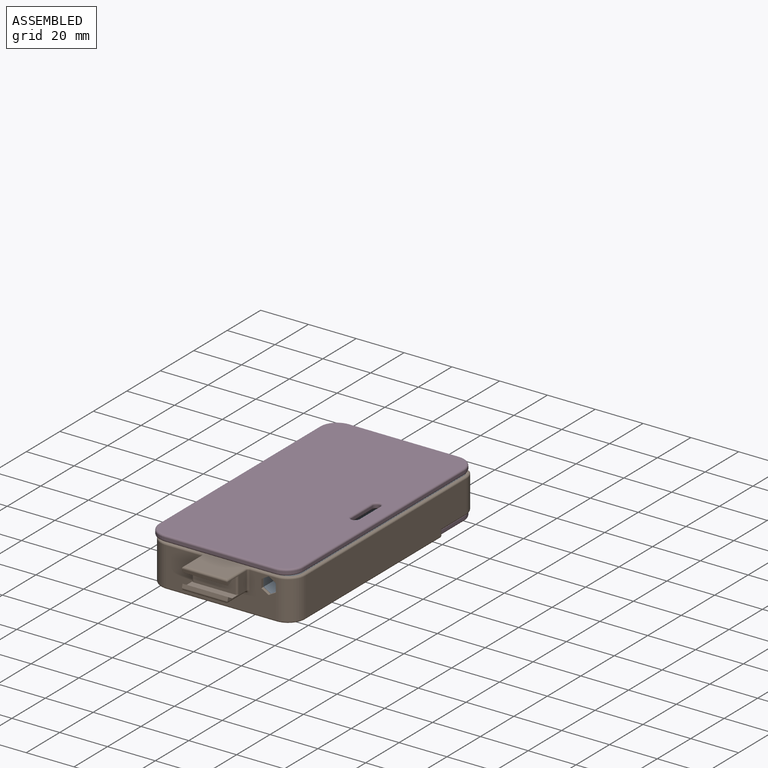
[diagram: assembled view]
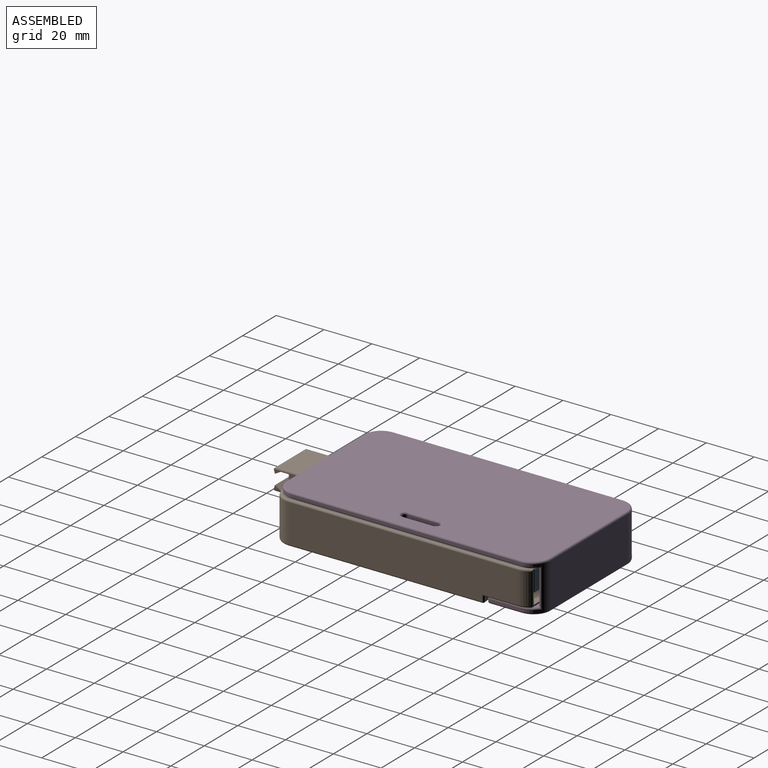
[diagram: assembled view, second angle]
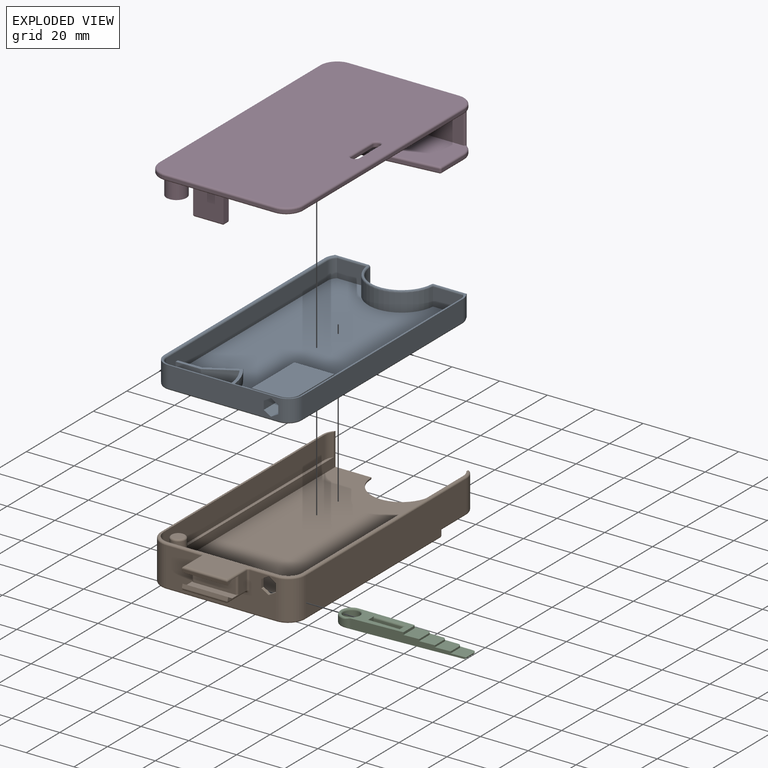
[diagram: exploded view]
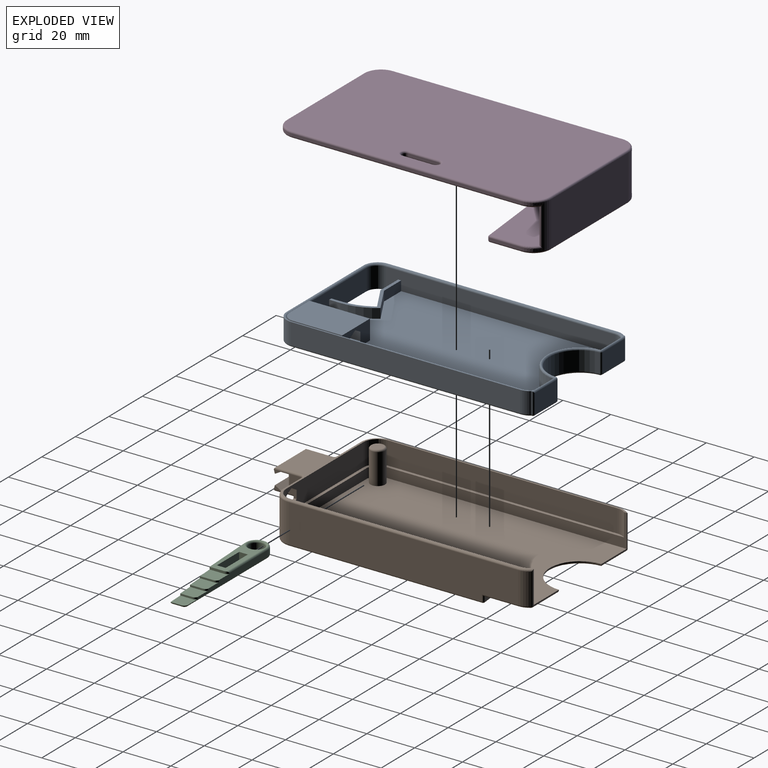
[diagram: exploded view, second angle]
ASSEMBLY  parts=4 mates=3
PART A: 87 faces, bbox 59.1x107.6x9.5 mm
  f0: plane 16.64x8.26mm, normal (0,1,0), area 105.2mm2, adj f1,f8,f76,f77,f78,f79,f80,f81
  f1: plane 75.37x7.49mm, normal (-1,0,0), area 564.8mm2, adj f0,f8,f23,f49
  f2: plane 34.1x8.76mm, normal (0,1,0), area 277mm2, adj f4,f8,f10,f14,f19,f21,f62,f86
  f3: cylinder r=0.76mm len=0.76mm, axis (1,0,0), area 0.3mm2, adj f4,f10,f72
  f4: plane 105.03x56.26mm, normal (0,0,-1), area 5305.6mm2, adj f2,f3,f9,f10,f18,f21,f36,f37
  f5: plane 105.79x57.79mm, normal (0,0,1), area 100.8mm2, adj f27,f28,f29,f30,f31,f32,f33,f34
  f6: plane 12.31x7.49mm, normal (0,-1,0), area 92.3mm2, adj f8,f20,f23,f61
  f7: plane 12.31x7.49mm, normal (0,-1,0), area 92.3mm2, adj f8,f20,f22,f68
  f8: plane 104.27x55.5mm, normal (0,0,1), area 4731.5mm2, adj f0,f1,f2,f6,f7,f9,f14,f15
  f9: plane 96.01x8.76mm, normal (1,0,0), area 720.8mm2, adj f4,f8,f17,f18,f19,f21,f22,f69
  f10: plane 5.33x4.76mm, normal (-1,0,0), area 24.1mm2, adj f2,f3,f4,f11,f19,f72
  f11: cylinder r=20.96mm len=10.48mm, axis (0,0,1), area 50.2mm2, adj f10,f12,f19,f71
  f12: plane 4.57x1.38mm, normal (-0.87,-0.5,0), area 7.3mm2, adj f11,f13,f19,f73
  f13: plane 11.55x6.67mm, normal (0.5,-0.87,0), area 61mm2, adj f12,f18,f19,f74
  f14: plane 4.76x4.06mm, normal (1,0,0), area 19.4mm2, adj f2,f8,f15,f19
  f15: cylinder r=22.23mm len=13.5mm, axis (0,0,-1), area 58.9mm2, adj f8,f14,f16,f19
  f16: plane 12.19x7.04mm, normal (-0.5,0.87,0), area 57.2mm2, adj f8,f15,f17,f19
  f17: plane 10.23x4.06mm, normal (0,1,0), area 41.6mm2, adj f8,f9,f16,f19
  f18: plane 10.57x5.33mm, normal (0,-1,0), area 56.2mm2, adj f4,f9,f13,f19,f75
  f19: plane 26.99x18.26mm, normal (0,0,1), area 53.8mm2, adj f2,f9,f10,f11,f12,f13,f14,f15
  f20: cylinder r=13.97mm len=27.82mm, axis (0,0,-1), area 309.8mm2, adj f6,f7,f8,f65
  f21: cylinder r=4.76mm len=8.76mm, axis (0,0,1), area 65.6mm2, adj f2,f4,f9,f66
  f22: cylinder r=4.76mm len=7.49mm, axis (0,0,-1), area 29.4mm2, adj f7,f8,f9,f70
  f23: cylinder r=4.76mm len=7.49mm, axis (0,0,-1), area 29.4mm2, adj f1,f6,f8,f55
  f24: plane 13.3x8mm, normal (0,1,0), area 106.4mm2, adj f51,f58,f63,f67
  f25: cylinder r=12.83mm len=25.6mm, axis (0,0,1), area 309mm2, adj f46,f53,f58,f59
  f26: plane 13.3x8mm, normal (0,1,0), area 106.4mm2, adj f43,f48,f53,f54
  f27: plane 8.76x0.21mm, normal (1,0,0), area 1.9mm2, adj f5,f28,f41,f48
  f28: cylinder r=5.91mm len=8.76mm, axis (0,0,1), area 34.6mm2, adj f5,f27,f29,f39
  f29: plane 96.01x8.76mm, normal (1,0,0), area 841.4mm2, adj f5,f28,f30,f37
  f30: cylinder r=5.91mm len=8.76mm, axis (0,0,1), area 81.3mm2, adj f5,f29,f31,f36,f78
  f31: plane 45.97x8.76mm, normal (0,-1,0), area 370.7mm2, adj f5,f30,f32,f38,f76,f77,f79,f80
  f32: cylinder r=5.91mm len=8.76mm, axis (0,0,1), area 81.3mm2, adj f5,f31,f33,f40
  f33: plane 96.01x8.76mm, normal (-1,0,0), area 841.4mm2, adj f5,f32,f34,f42
  f34: cylinder r=5.91mm len=8.76mm, axis (0,0,1), area 34.6mm2, adj f5,f33,f35,f45
  f35: plane 8.76x0.21mm, normal (-1,0,0), area 1.9mm2, adj f5,f34,f50,f63
  f36: torus R=5.14mm, axis (0,0,1), area 10.6mm2, adj f4,f30,f37,f38
  f37: cylinder r=0.76mm len=96.01mm, axis (0,1,0), area 114.9mm2, adj f4,f29,f36,f39
  f38: cylinder r=0.76mm len=45.97mm, axis (1,0,0), area 55mm2, adj f4,f31,f36,f40
  f39: torus R=5.14mm, axis (0,0,1), area 4.6mm2, adj f4,f28,f37,f41
  f40: torus R=5.14mm, axis (0,0,1), area 10.6mm2, adj f4,f32,f38,f42
  f41: cylinder r=0.76mm len=0.76mm, axis (0,1,0), area 0.4mm2, adj f4,f27,f39,f44
  f42: cylinder r=0.76mm len=96.01mm, axis (0,-1,0), area 114.9mm2, adj f4,f33,f40,f45
  f43: cylinder r=0.76mm len=13.3mm, axis (-1,0,0), area 15.9mm2, adj f4,f26,f44,f47
  f44: sphere r=0.76mm, area 0.9mm2, adj f41,f43,f48
  f45: torus R=5.14mm, axis (0,0,1), area 4.6mm2, adj f4,f34,f42,f50
  f46: torus R=13.59mm, axis (0,0,1), area 47.2mm2, adj f4,f25,f47,f52
  f47: sphere r=0.76mm, area 0.9mm2, adj f43,f46,f53
  f48: cylinder r=0.76mm len=8.76mm, axis (0,0,1), area 10.2mm2, adj f26,f27,f44,f54
  f49: cylinder r=0.76mm len=96.01mm, axis (0,1,0), area 114.9mm2, adj f1,f5,f55,f56,f85
  f50: cylinder r=0.76mm len=0.76mm, axis (0,-1,0), area 0.4mm2, adj f4,f35,f45,f57
  f51: cylinder r=0.76mm len=13.3mm, axis (-1,0,0), area 15.9mm2, adj f4,f24,f52,f57
  f52: sphere r=0.76mm, area 0.9mm2, adj f46,f51,f58
  f53: cylinder r=0.76mm len=8mm, axis (0,0,1), area 9.2mm2, adj f25,f26,f47,f60
  f54: cylinder r=0.76mm len=14.06mm, axis (-1,0,0), area 14mm2, adj f5,f26,f48,f55,f60,f61
  f55: torus R=5.52mm, axis (0,0,1), area 5mm2, adj f5,f23,f49,f54,f61
  f56: torus R=5.52mm, axis (0,0,1), area 9.5mm2, adj f5,f49,f62,f82
  f57: sphere r=0.76mm, area 0.9mm2, adj f50,f51,f63
  f58: cylinder r=0.76mm len=8mm, axis (0,0,1), area 9.2mm2, adj f24,f25,f52,f64
  f59: torus R=13.59mm, axis (0,0,1), area 39.4mm2, adj f25,f60,f64,f65
  f60: sphere r=0.76mm, area 0.8mm2, adj f53,f54,f59,f61,f65
  f61: cylinder r=0.76mm len=13.03mm, axis (-1,0,0), area 12.6mm2, adj f6,f54,f55,f60,f65
  f62: cylinder r=0.76mm len=45.97mm, axis (1,0,0), area 55mm2, adj f2,f5,f56,f66,f83
  f63: cylinder r=0.76mm len=8.76mm, axis (0,0,1), area 10.2mm2, adj f24,f35,f57,f67
  f64: sphere r=0.76mm, area 0.8mm2, adj f58,f59,f65,f67,f68
  f65: torus R=13.21mm, axis (0,0,1), area 41.3mm2, adj f20,f59,f60,f61,f64,f68
  f66: torus R=5.52mm, axis (0,0,1), area 9.5mm2, adj f5,f21,f62,f69
  f67: cylinder r=0.76mm len=14.06mm, axis (-1,0,0), area 14mm2, adj f5,f24,f63,f64,f68,f70
  f68: cylinder r=0.76mm len=13.03mm, axis (-1,0,0), area 12.6mm2, adj f7,f64,f65,f67,f70
  f69: cylinder r=0.76mm len=96.01mm, axis (0,-1,0), area 114.9mm2, adj f5,f9,f66,f70
  f70: torus R=5.52mm, axis (0,0,1), area 5mm2, adj f5,f22,f67,f68,f69
  f71: torus R=21.72mm, axis (0,0,1), area 13.3mm2, adj f4,f11,f72,f73
  f72: cylinder r=0.76mm len=2.35mm, axis (0,1,0), area 2.2mm2, adj f3,f4,f10,f71
  f73: cylinder r=0.76mm len=2.42mm, axis (-0.5,0.87,0), area 2.2mm2, adj f4,f12,f71,f74
  f74: cylinder r=0.76mm len=13.25mm, axis (-0.87,-0.5,0), area 16.6mm2, adj f4,f13,f73,f75
  f75: cylinder r=0.76mm len=1.04mm, axis (0.5,-0.87,0), area 0.1mm2, adj f4,f18,f74
  f76: plane 26.54x3.05mm, normal (0.5,0,-0.87), area 93.4mm2, adj f0,f31,f77,f81
  f77: plane 26.54x3.05mm, normal (-0.5,0,-0.87), area 93.4mm2, adj f0,f31,f76,f78
  f78: plane 26.54x3.52mm, normal (-1,0,0), area 93.4mm2, adj f0,f30,f77,f79
  f79: plane 26.54x3.05mm, normal (-0.5,0,0.87), area 93.4mm2, adj f0,f31,f78,f80
  f80: plane 26.54x3.05mm, normal (0.5,0,0.87), area 93.4mm2, adj f0,f31,f79,f81
  f81: plane 26.54x3.52mm, normal (1,0,0), area 93.4mm2, adj f0,f31,f76,f80
  f82: cylinder r=4.76mm len=4.76mm, axis (0,0,-1), area 5.7mm2, adj f56,f83,f84,f85
  f83: plane 11.87x0.76mm, normal (0,-1,0), area 9mm2, adj f62,f82,f84,f86
  f84: plane 25.4x16.64mm, normal (0,0,1), area 417.7mm2, adj f0,f82,f83,f85,f86
  f85: plane 20.64x0.76mm, normal (1,0,0), area 15.7mm2, adj f0,f49,f82,f84
  f86: plane 25.4x8.26mm, normal (-1,0,0), area 209.7mm2, adj f0,f2,f8,f83,f84
PART B: 92 faces, bbox 61.8x121.1x17.4 mm
  f0: plane 17.53x7.04mm, normal (0,-1,0), area 123.4mm2, adj f71,f76,f90,f91
  f1: plane 45.97x15.88mm, normal (0,-1,0), area 513.1mm2, adj f2,f22,f23,f35,f52,f61,f62,f63
  f2: cylinder r=0.76mm len=14.41mm, axis (1,0,0), area 17.3mm2, adj f1,f8,f49,f81
  f3: plane 15.48x13.89mm, normal (0,1,0), area 10.3mm2, adj f11,f14,f31,f53,f58,f59
  f4: plane 15.48x13.89mm, normal (0,1,0), area 10.3mm2, adj f11,f13,f31,f39,f43,f47
  f5: plane 96.01x9.53mm, normal (1,0,0), area 914.5mm2, adj f7,f8,f20,f27
  f6: plane 96.01x9.53mm, normal (-1,0,0), area 914.5mm2, adj f7,f8,f21,f26
  f7: plane 105.75x58.04mm, normal (0,0,1), area 330.2mm2, adj f5,f6,f12,f13,f14,f16,f18,f19
  f8: plane 119.24x59.06mm, normal (0,0,1), area 350.3mm2, adj f2,f5,f6,f13,f14,f16,f20,f21
  f9: plane 59.06x24.56mm, normal (0,0,-1), area 999.9mm2, adj f17,f36,f40,f47,f48,f50,f51,f53
  f10: plane 96.01x15.88mm, normal (-1,0,0), area 1465.7mm2, adj f23,f25,f33,f34,f36,f46
  f11: plane 105.54x55.5mm, normal (0,0,1), area 5564.9mm2, adj f3,f4,f12,f13,f14,f18,f19,f29
  f12: plane 45.97x4.06mm, normal (0,1,0), area 186.8mm2, adj f7,f11,f18,f19
  f13: plane 100.78x13.59mm, normal (1,0,0), area 419.6mm2, adj f4,f7,f8,f11,f18,f27,f43
  f14: plane 100.78x13.59mm, normal (-1,0,0), area 419.6mm2, adj f3,f7,f8,f11,f19,f26,f59
  f15: plane 96.01x15.88mm, normal (1,0,0), area 1482.7mm2, adj f22,f24,f42,f48,f51,f57
  f16: plane 45.97x9.53mm, normal (0,1,0), area 405.7mm2, adj f7,f8,f20,f21,f61,f62,f63,f64
  f17: plane 59.06x6.19mm, normal (-0.1,0.99,0), area 117.6mm2, adj f9,f33,f36,f41,f48
  f18: cylinder r=4.76mm len=4.76mm, axis (0,0,-1), area 30.4mm2, adj f7,f11,f12,f13
  f19: cylinder r=4.76mm len=4.76mm, axis (0,0,1), area 30.4mm2, adj f7,f11,f12,f14
  f20: cylinder r=6.03mm len=9.53mm, axis (0,0,-1), area 90.3mm2, adj f5,f7,f8,f16
  f21: cylinder r=6.03mm len=9.53mm, axis (0,0,1), area 90.3mm2, adj f6,f7,f8,f16,f65
  f22: cylinder r=7.3mm len=15.88mm, axis (0,0,1), area 182.1mm2, adj f1,f15,f38,f55,f65
  f23: cylinder r=7.3mm len=15.88mm, axis (0,0,1), area 182.1mm2, adj f1,f10,f32,f49
  f24: cylinder r=7.3mm len=13.13mm, axis (0,0,1), area 63.1mm2, adj f15,f54,f58,f59
  f25: cylinder r=7.3mm len=13.13mm, axis (0,0,1), area 63.1mm2, adj f10,f39,f40,f43
  f26: cylinder r=6.03mm len=9.53mm, axis (0,0,1), area 38mm2, adj f6,f7,f8,f14
  f27: cylinder r=6.03mm len=9.53mm, axis (0,0,1), area 38mm2, adj f5,f7,f8,f13
  f28: plane 87.42x59.06mm, normal (0,0,-1), area 4961.4mm2, adj f32,f34,f35,f38,f41,f42
  f29: cylinder r=3.05mm len=12.83mm, axis (0,0,1), area 245.7mm2, adj f11,f60
  f30: plane 4.57x4.57mm, normal (0,0,1), area 16.4mm2, adj f60
  f31: cylinder r=12.7mm len=25.4mm, axis (0,0,1), area 12.2mm2, adj f3,f4,f11,f50
  f32: torus R=6.54mm, axis (0,0,-1), area 13.2mm2, adj f23,f28,f34,f35
  f33: cylinder r=0.76mm len=2.74mm, axis (0,0,1), area 2.5mm2, adj f10,f17,f36,f37
  f34: cylinder r=0.76mm len=74.69mm, axis (0,-1,0), area 89.4mm2, adj f10,f28,f32,f37
  f35: cylinder r=0.76mm len=45.97mm, axis (1,0,0), area 55mm2, adj f1,f28,f32,f38
  f36: cylinder r=0.76mm len=21.32mm, axis (0,1,0), area 24.9mm2, adj f9,f10,f17,f33,f40
  f37: sphere r=0.76mm, area 0.9mm2, adj f33,f34,f41
  f38: torus R=6.54mm, axis (0,0,-1), area 13.2mm2, adj f22,f28,f35,f42
  f39: cylinder r=0.76mm len=13.71mm, axis (0,0,1), area 9.3mm2, adj f4,f25,f43,f44
  f40: torus R=6.54mm, axis (0,0,1), area 5.5mm2, adj f9,f25,f36,f44
  f41: cylinder r=0.76mm len=59.13mm, axis (0.99,0.1,0), area 71.1mm2, adj f17,f28,f37,f45
  f42: cylinder r=0.76mm len=80.88mm, axis (0,1,0), area 96.8mm2, adj f15,f28,f38,f45
  f43: torus R=6.54mm, axis (0,0,1), area 6.1mm2, adj f4,f8,f13,f25,f39,f46
  f44: sphere r=0.76mm, area 0.5mm2, adj f39,f40,f47
  f45: sphere r=0.76mm, area 1mm2, adj f41,f42,f48
  f46: cylinder r=0.76mm len=96.01mm, axis (0,-1,0), area 114.9mm2, adj f8,f10,f43,f49
  f47: cylinder r=0.76mm len=15.46mm, axis (1,0,0), area 18.2mm2, adj f4,f9,f44,f50
  f48: cylinder r=0.76mm len=2.74mm, axis (0,0,-1), area 2.9mm2, adj f9,f15,f17,f45,f51
  f49: torus R=6.54mm, axis (0,0,1), area 13.2mm2, adj f2,f8,f23,f46
  f50: torus R=13.46mm, axis (0,0,1), area 48.1mm2, adj f9,f31,f47,f53
  f51: cylinder r=0.76mm len=15.13mm, axis (0,1,0), area 17.5mm2, adj f9,f15,f48,f54
  f52: cylinder r=0.76mm len=10.99mm, axis (1,0,0), area 13.1mm2, adj f1,f8,f55,f89
  f53: cylinder r=0.76mm len=15.46mm, axis (1,0,0), area 18.2mm2, adj f3,f9,f50,f56
  f54: torus R=6.54mm, axis (0,0,1), area 5.5mm2, adj f9,f24,f51,f56
  f55: torus R=6.54mm, axis (0,0,1), area 13.2mm2, adj f8,f22,f52,f57
  f56: sphere r=0.76mm, area 0.5mm2, adj f53,f54,f58
  f57: cylinder r=0.76mm len=96.01mm, axis (0,1,0), area 114.9mm2, adj f8,f15,f55,f59
  f58: cylinder r=0.76mm len=13.71mm, axis (0,0,1), area 9.3mm2, adj f3,f24,f56,f59
  f59: torus R=6.54mm, axis (0,0,1), area 6.1mm2, adj f3,f8,f14,f24,f57,f58
  f60: torus R=2.29mm, axis (0,0,1), area 20.8mm2, adj f29,f30
  f61: plane 3.05x1.76mm, normal (0.5,0,-0.87), area 4.5mm2, adj f1,f16,f63,f64
  f62: plane 3.05x1.76mm, normal (0.5,0,0.87), area 4.5mm2, adj f1,f16,f63,f66
  f63: plane 3.52x1.27mm, normal (1,0,0), area 4.5mm2, adj f1,f16,f61,f62
  f64: plane 3.05x1.76mm, normal (-0.5,0,-0.87), area 4.5mm2, adj f1,f16,f61,f65
  f65: plane 3.52x1.27mm, normal (-1,0,0), area 4.5mm2, adj f21,f22,f64,f66
  f66: plane 3.05x1.76mm, normal (-0.5,0,0.87), area 4.5mm2, adj f1,f16,f62,f65
  f67: plane 11.44x7.49mm, normal (-1,0,0), area 43mm2, adj f70,f71,f72,f73,f74,f75,f76,f77
  f68: plane 17.53x10.68mm, normal (0,0,-1), area 187.1mm2, adj f77,f80,f82,f83
  f69: plane 11.44x7.49mm, normal (1,0,0), area 43mm2, adj f70,f71,f72,f73,f74,f75,f76,f80
  f70: plane 19.05x2.38mm, normal (0,0.5,0.87), area 52.3mm2, adj f67,f69,f71,f72
  f71: plane 19.05x3.81mm, normal (0,0,1), area 58.3mm2, adj f0,f67,f69,f70,f90,f91
  f72: plane 19.05x1.39mm, normal (0,-0.96,0.27), area 27.6mm2, adj f67,f69,f70,f80
  f73: plane 19.05x1.71mm, normal (0,0.5,-0.86), area 37.6mm2, adj f67,f69,f74,f76
  f74: plane 19.05x0.67mm, normal (0,0.5,-0.87), area 14.7mm2, adj f67,f69,f73,f75
  f75: plane 19.05x1.4mm, normal (0,-0.96,-0.27), area 27.6mm2, adj f67,f69,f74,f86
  f76: plane 19.05x3.81mm, normal (0,0,-1), area 58.3mm2, adj f0,f67,f69,f73,f90,f91
  f77: cylinder r=0.76mm len=11.44mm, axis (0,1,0), area 13.4mm2, adj f67,f68,f79,f80
  f78: cylinder r=0.76mm len=7.49mm, axis (0,0,1), area 9mm2, adj f1,f67,f79,f81
  f79: torus R=1.52mm, axis (0,-1,0), area 2mm2, adj f1,f77,f78,f82
  f80: cylinder r=0.76mm len=19.05mm, axis (-1,0,0), area 26.1mm2, adj f67,f68,f69,f72,f77,f83
  f81: torus R=1.52mm, axis (0,0,1), area 2mm2, adj f2,f8,f78,f84
  f82: cylinder r=0.76mm len=17.53mm, axis (-1,0,0), area 21mm2, adj f1,f68,f79,f85
  f83: cylinder r=0.76mm len=11.44mm, axis (0,-1,0), area 13.4mm2, adj f68,f69,f80,f85
  f84: cylinder r=0.76mm len=11.44mm, axis (0,-1,0), area 13.4mm2, adj f8,f67,f81,f86
  f85: torus R=1.52mm, axis (0,-1,0), area 2mm2, adj f1,f82,f83,f87
  f86: cylinder r=0.76mm len=19.05mm, axis (-1,0,0), area 26.1mm2, adj f8,f67,f69,f75,f84,f88
  f87: cylinder r=0.76mm len=7.49mm, axis (0,0,-1), area 9mm2, adj f1,f69,f85,f89
  f88: cylinder r=0.76mm len=11.44mm, axis (0,1,0), area 13.4mm2, adj f8,f69,f86,f89
  f89: torus R=1.52mm, axis (0,0,1), area 2mm2, adj f8,f52,f87,f88
  f90: cylinder r=0.76mm len=7.04mm, axis (0,0,-1), area 8.4mm2, adj f0,f69,f71,f76
  f91: cylinder r=0.76mm len=7.04mm, axis (0,0,1), area 8.4mm2, adj f0,f67,f71,f76
PART C: 39 faces, bbox 54.2x10.2x4.2 mm
  f0: plane 52.13x7.75mm, normal (0,0,-1), area 249.7mm2, adj f9,f21,f22,f23,f24,f25,f26,f31
  f1: plane 7.19x6.56mm, normal (0,0,1), area 39.7mm2, adj f5,f14,f23,f24,f25,f26,f35
  f2: plane 7.59x7.32mm, normal (0,0,1), area 47.1mm2, adj f7,f8,f11,f12,f19,f35
  f3: plane 7.32x7.25mm, normal (0,0,1), area 44.9mm2, adj f6,f7,f12,f13,f19,f35
  f4: plane 7.32x6.9mm, normal (0,0,1), area 42.7mm2, adj f5,f6,f13,f14,f19,f35
  f5: cylinder r=1.59mm len=1.46mm, axis (0,0,1), area 1.4mm2, adj f1,f4,f14,f19
  f6: cylinder r=1.59mm len=1.46mm, axis (0,0,1), area 1.4mm2, adj f3,f4,f13,f19
  f7: cylinder r=1.59mm len=1.46mm, axis (0,0,1), area 1.4mm2, adj f2,f3,f12,f19
  f8: cylinder r=1.59mm len=1.46mm, axis (0,0,1), area 1.7mm2, adj f2,f10,f11,f19,f27
  f9: cylinder r=3.3mm len=6.6mm, axis (0,0,-1), area 68.5mm2, adj f0,f29
  f10: plane 22.52x7.75mm, normal (0,0,1), area 97.5mm2, adj f8,f11,f15,f17,f27,f29,f30,f35
  f11: plane 6.13x1.02mm, normal (1,0,0), area 6.2mm2, adj f2,f8,f10,f35
  f12: plane 5.79x0.76mm, normal (1,0,0), area 4.4mm2, adj f2,f3,f7,f35
  f13: plane 5.44x0.76mm, normal (1,0,0), area 4.1mm2, adj f3,f4,f6,f35
  f14: plane 5.1x0.76mm, normal (1,0,0), area 3.9mm2, adj f1,f4,f5,f35
  f15: plane 3.94x3.3mm, normal (1,0,0), area 10.6mm2, adj f10,f16,f17,f33,f37
  f16: plane 12.7x2.54mm, normal (0,-1,0), area 32.3mm2, adj f15,f18,f31,f37
  f17: plane 13.46x3.3mm, normal (0,1,0), area 42.1mm2, adj f10,f15,f18,f34,f36
  f18: plane 3.18x2.54mm, normal (-1,0,0), area 8.1mm2, adj f16,f17,f32,f36
  f19: plane 41.83x2.54mm, normal (0,1,0), area 86.9mm2, adj f2,f3,f4,f5,f6,f7,f8,f20
  f20: cylinder r=4.64mm len=9.27mm, axis (0,0,-1), area 42.7mm2, adj f19,f21,f22,f28,f30,f38
  f21: cylinder r=0.76mm len=6.8mm, axis (1,0,0), area 2.2mm2, adj f0,f20,f22,f35,f38
  f22: torus R=3.87mm, axis (0,0,1), area 16.4mm2, adj f0,f20,f21,f24
  f23: torus R=3.08mm, axis (0,0,1), area 1mm2, adj f0,f1,f25,f35
  f24: cylinder r=0.76mm len=47.56mm, axis (-1,0,0), area 56.9mm2, adj f0,f1,f19,f22,f26
  f25: cylinder r=0.76mm len=3.97mm, axis (0,1,0), area 4.8mm2, adj f0,f1,f23,f26
  f26: torus R=0.7mm, axis (0,0,1), area 2.2mm2, adj f0,f1,f24,f25
  f27: cylinder r=0.76mm len=23.59mm, axis (1,0,0), area 27.7mm2, adj f8,f10,f19,f28,f29
  f28: torus R=3.87mm, axis (0,0,1), area 15.2mm2, adj f20,f27,f29,f30
  f29: torus R=4.06mm, axis (0,0,1), area 25.6mm2, adj f9,f10,f27,f28,f30
  f30: cylinder r=0.76mm len=6.8mm, axis (-1,0,0), area 2.1mm2, adj f10,f20,f28,f29,f35,f38
  f31: cylinder r=0.76mm len=14.22mm, axis (1,0,0), area 15.9mm2, adj f0,f16,f32,f33
  f32: cylinder r=0.76mm len=4.7mm, axis (0,-1,0), area 4.5mm2, adj f0,f18,f31,f34
  f33: cylinder r=0.76mm len=4.7mm, axis (0,1,0), area 4.5mm2, adj f0,f15,f31,f34
  f34: cylinder r=0.76mm len=14.22mm, axis (-1,0,0), area 15.9mm2, adj f0,f17,f32,f33
  f35: plane 46.47x4.19mm, normal (0.05,-1,0), area 134.2mm2, adj f0,f1,f2,f3,f4,f10,f11,f12
  f36: cylinder r=0.76mm len=3.94mm, axis (0,-1,0), area 4.1mm2, adj f10,f17,f18,f37
  f37: cylinder r=0.76mm len=13.46mm, axis (1,0,0), area 15.5mm2, adj f10,f15,f16,f36
  f38: cylinder r=2.54mm len=3.99mm, axis (0,0,-1), area 3.3mm2, adj f20,f21,f30,f35
PART D: 76 faces, bbox 61.8x111.8x19.9 mm
  f0: plane 59.06x24.89mm, normal (0,0,1), area 1260.9mm2, adj f23,f30,f34,f35,f40,f44,f46,f48
  f1: plane 13.47x1.09mm, normal (1,0,0), area 14.7mm2, adj f17,f31,f39,f44
  f2: plane 19.66x1.09mm, normal (-1,0,0), area 21.5mm2, adj f3,f27,f33,f34
  f3: cylinder r=7.3mm len=18.42mm, axis (0,0,1), area 87mm2, adj f2,f4,f14,f25,f30,f35,f38,f55
  f4: plane 96.01x1.02mm, normal (-1,0,0), area 97.5mm2, adj f3,f15,f41,f53
  f5: plane 107.78x59.06mm, normal (0,0,-1), area 6147.8mm2, adj f9,f11,f12,f13,f19,f23,f35,f38
  f6: plane 45.97x1.02mm, normal (0,-1,0), area 46.7mm2, adj f15,f16,f45,f52
  f7: plane 96.01x1.02mm, normal (1,0,0), area 97.5mm2, adj f16,f17,f49,f56
  f8: plane 109.09x59.06mm, normal (0,0,1), area 6328.7mm2, adj f51,f52,f53,f54,f55,f56,f57,f58
  f9: plane 12.83x3.18mm, normal (-1,0,0), area 40.7mm2, adj f5,f11,f12,f61
  f10: plane 11.18x1.65mm, normal (0,0,-1), area 18.5mm2, adj f60,f61,f62,f63
  f11: plane 12.83x12.7mm, normal (0,-1,0), area 162.9mm2, adj f5,f9,f13,f63
  f12: plane 12.83x12.7mm, normal (0,1,0), area 162.9mm2, adj f5,f9,f13,f60
  f13: plane 12.83x3.18mm, normal (1,0,0), area 40.7mm2, adj f5,f11,f12,f62
  f14: plane 45.97x18.42mm, normal (0,1,0), area 846.6mm2, adj f3,f17,f26,f57
  f15: cylinder r=7.3mm len=7.3mm, axis (0,0,-1), area 11.7mm2, adj f4,f6,f43,f51
  f16: cylinder r=7.3mm len=7.3mm, axis (0,0,-1), area 11.7mm2, adj f6,f7,f47,f54
  f17: cylinder r=7.3mm len=18.42mm, axis (0,0,1), area 87mm2, adj f1,f7,f14,f28,f46,f48,f50,f58
  f18: plane 59.06x26.2mm, normal (0,0,-1), area 1346.3mm2, adj f25,f26,f27,f28,f31,f32
  f19: cylinder r=4.19mm len=8.38mm, axis (0,0,-1), area 214mm2, adj f5,f22
  f20: plane 6.6x6.6mm, normal (0,0,-1), area 34.3mm2, adj f21
  f21: cylinder r=3.3mm len=7.37mm, axis (0,0,1), area 152.8mm2, adj f20,f59
  f22: plane 8.38x8.38mm, normal (0,0,-1), area 3.3mm2, adj f19,f59
  f23: plane 52.56x14.78mm, normal (0,-1,0), area 777mm2, adj f0,f5,f35,f48
  f24: plane 59.06x6.19mm, normal (0.1,-0.99,0), area 64.9mm2, adj f32,f33,f39,f40
  f25: torus R=6.54mm, axis (0,0,-1), area 13.2mm2, adj f3,f18,f26,f27
  f26: cylinder r=0.76mm len=45.97mm, axis (-1,0,0), area 55mm2, adj f14,f18,f25,f28
  f27: cylinder r=0.76mm len=19.66mm, axis (0,1,0), area 23.5mm2, adj f2,f18,f25,f29
  f28: torus R=6.54mm, axis (0,0,-1), area 13.2mm2, adj f17,f18,f26,f31
  f29: sphere r=0.76mm, area 1mm2, adj f27,f32,f33
  f30: torus R=6.54mm, axis (0,0,1), area 8.2mm2, adj f0,f3,f34,f35
  f31: cylinder r=0.76mm len=13.47mm, axis (0,1,0), area 16.1mm2, adj f1,f18,f28,f36
  f32: cylinder r=0.76mm len=59.13mm, axis (0.99,0.1,0), area 71.1mm2, adj f18,f24,f29,f36
  f33: cylinder r=0.76mm len=1.09mm, axis (0,0,1), area 1.4mm2, adj f2,f24,f29,f37
  f34: cylinder r=0.76mm len=19.66mm, axis (0,-1,0), area 23.5mm2, adj f0,f2,f30,f37
  f35: cylinder r=0.76mm len=16.31mm, axis (0,0,1), area 30.1mm2, adj f0,f3,f5,f23,f30,f38
  f36: sphere r=0.76mm, area 0.9mm2, adj f31,f32,f39
  f37: sphere r=0.76mm, area 1mm2, adj f33,f34,f40
  f38: torus R=6.54mm, axis (0,0,1), area 8.2mm2, adj f3,f5,f35,f41
  f39: cylinder r=0.76mm len=1.09mm, axis (0,0,-1), area 1.2mm2, adj f1,f24,f36,f42
  f40: cylinder r=0.76mm len=59.13mm, axis (0.99,0.1,0), area 71.1mm2, adj f0,f24,f37,f42
  f41: cylinder r=0.76mm len=96.01mm, axis (0,-1,0), area 114.9mm2, adj f4,f5,f38,f43
  f42: sphere r=0.76mm, area 0.9mm2, adj f39,f40,f44
  f43: torus R=6.54mm, axis (0,0,1), area 13.2mm2, adj f5,f15,f41,f45
  f44: cylinder r=0.76mm len=13.47mm, axis (0,1,0), area 16.1mm2, adj f0,f1,f42,f46
  f45: cylinder r=0.76mm len=45.97mm, axis (1,0,0), area 55mm2, adj f5,f6,f43,f47
  f46: torus R=6.54mm, axis (0,0,1), area 8.2mm2, adj f0,f17,f44,f48
  f47: torus R=6.54mm, axis (0,0,1), area 13.2mm2, adj f5,f16,f45,f49
  f48: cylinder r=0.76mm len=16.31mm, axis (0,0,1), area 30.1mm2, adj f0,f5,f17,f23,f46,f50
  f49: cylinder r=0.76mm len=96.01mm, axis (0,1,0), area 114.9mm2, adj f5,f7,f47,f50
  f50: torus R=6.54mm, axis (0,0,1), area 8.2mm2, adj f5,f17,f48,f49
  f51: torus R=6.54mm, axis (0,0,1), area 13.2mm2, adj f8,f15,f52,f53
  f52: cylinder r=0.76mm len=45.97mm, axis (-1,0,0), area 55mm2, adj f6,f8,f51,f54
  f53: cylinder r=0.76mm len=96.01mm, axis (0,1,0), area 114.9mm2, adj f4,f8,f51,f55
  f54: torus R=6.54mm, axis (0,0,1), area 13.2mm2, adj f8,f16,f52,f56
  f55: torus R=6.54mm, axis (0,0,1), area 13.2mm2, adj f3,f8,f53,f57
  f56: cylinder r=0.76mm len=96.01mm, axis (0,-1,0), area 114.9mm2, adj f7,f8,f54,f58
  f57: cylinder r=0.76mm len=45.97mm, axis (1,0,0), area 55mm2, adj f8,f14,f55,f58
  f58: torus R=6.54mm, axis (0,0,1), area 13.2mm2, adj f8,f17,f56,f57
  f59: torus R=4.06mm, axis (0,0,1), area 26.9mm2, adj f21,f22
  f60: cylinder r=0.76mm len=12.7mm, axis (-1,0,0), area 14.5mm2, adj f10,f12,f61,f62
  f61: cylinder r=0.76mm len=3.18mm, axis (0,-1,0), area 3.1mm2, adj f9,f10,f60,f63
  f62: cylinder r=0.76mm len=3.18mm, axis (0,1,0), area 3.1mm2, adj f10,f13,f60,f63
  f63: cylinder r=0.76mm len=12.7mm, axis (1,0,0), area 14.5mm2, adj f10,f11,f61,f62
  f64: plane 12.7x1.02mm, normal (-1,0,0), area 12.9mm2, adj f65,f67,f71,f75
  f65: cylinder r=1.59mm len=3.18mm, axis (0,0,1), area 5.1mm2, adj f64,f66,f70,f74
  f66: plane 12.7x1.02mm, normal (1,0,0), area 12.9mm2, adj f65,f67,f68,f72
  f67: cylinder r=1.59mm len=3.18mm, axis (0,0,1), area 5.1mm2, adj f64,f66,f69,f73
  f68: cylinder r=0.76mm len=12.7mm, axis (0,-1,0), area 15.2mm2, adj f5,f66,f69,f70
  f69: torus R=2.35mm, axis (0,0,1), area 7mm2, adj f5,f67,f68,f71
  f70: torus R=2.35mm, axis (0,0,1), area 7mm2, adj f5,f65,f68,f71
  f71: cylinder r=0.76mm len=12.7mm, axis (0,1,0), area 15.2mm2, adj f5,f64,f69,f70
  f72: cylinder r=0.76mm len=12.7mm, axis (0,1,0), area 15.2mm2, adj f8,f66,f73,f74
  f73: torus R=2.35mm, axis (0,0,1), area 7mm2, adj f8,f67,f72,f75
  f74: torus R=2.35mm, axis (0,0,1), area 7mm2, adj f8,f65,f72,f75
  f75: cylinder r=0.76mm len=12.7mm, axis (0,-1,0), area 15.2mm2, adj f8,f64,f73,f74
PLACE A t=(-0.36,12.6,3.81)mm
PLACE B t=(-0.36,12.6,3.81)mm
PLACE C rot(axis=(0,0,1),0deg) t=(-0.36,12.6,3.81)mm
PLACE D rot(axis=(0,0,1),0deg) t=(-1.52,13.18,3.81)mm
MATE fastened D.f10 <-> C.f0  axis (0,0,-1) through (-10.09,-35.21,3.81)mm
MATE revolute B.f18 <-> C.f9  axis (0,0,1) through (-23.35,-35.79,3.81)mm
MATE fastened B.f18 <-> A.f11  axis (0,0,1) through (-23.35,-35.79,7.87)mm
